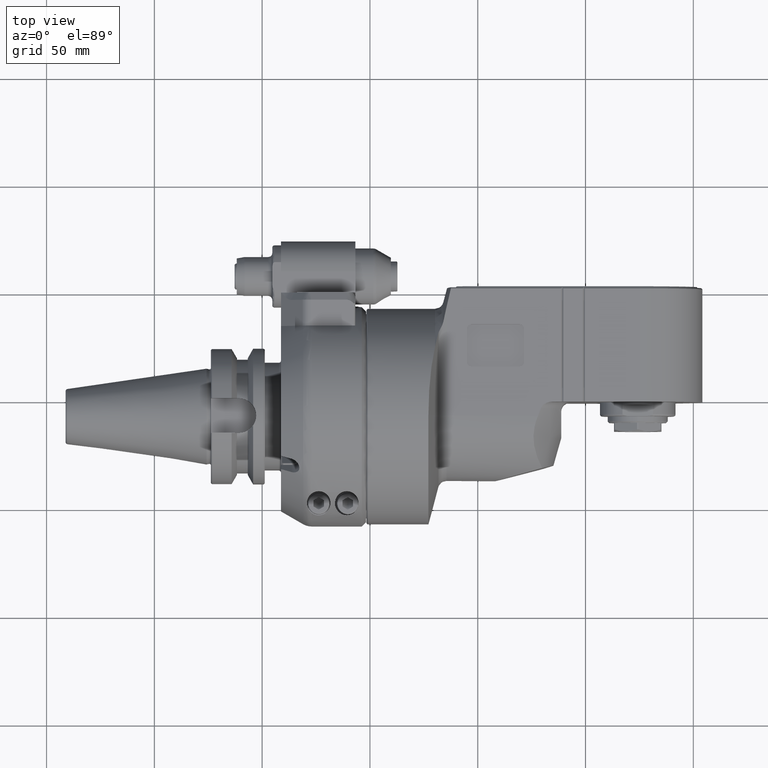
[diagram: clean part render]
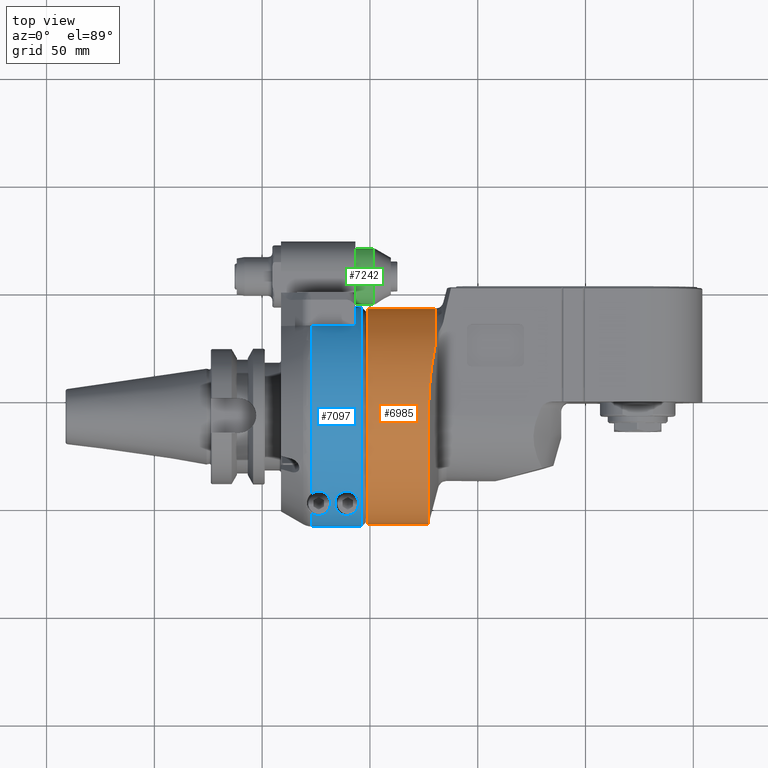
[diagram: same view with three faces highlighted in distinct colors, each labeled with its STEP entity id]
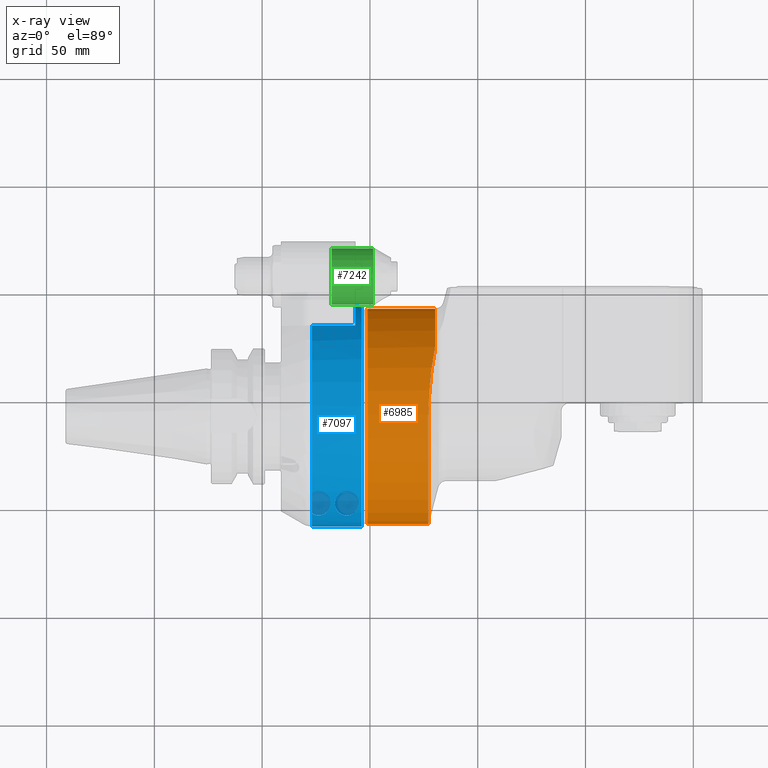
[diagram: x-ray of the same camera — body ghosted, the three highlighted faces saturated]
A machine part, top view with three faces highlighted in distinct colors.
The next image is the same camera in x-ray (body ghosted, the three faces saturated) — at least one of them is partly hidden behind the body in this view.
Their STEP definitions:

[orange] entity #6985 — the highlighted cylindrical surface (bore or boss wall) has radius 50 mm, axis along (1, 0, 0).
#662=FACE_OUTER_BOUND('',#1100,.T.);
#1100=EDGE_LOOP('',(#4723,#4724,#4725,#4726,#4727,#4728,#4729,#4730,#4731));
#1599=LINE('',#10331,#2099);
#2099=VECTOR('',#8275,50.);
#2599=ELLIPSE('',#7484,51.7638090205038,50.);
#2600=ELLIPSE('',#7486,51.7638090205038,50.);
#2605=CIRCLE('',#7483,50.);
#2606=CIRCLE('',#7485,50.);
#2607=CIRCLE('',#7487,50.);
#2608=CIRCLE('',#7488,50.);
#2609=CIRCLE('',#7489,50.);
#2943=VERTEX_POINT('',#10320);
#2944=VERTEX_POINT('',#10321);
#2945=VERTEX_POINT('',#10323);
#2946=VERTEX_POINT('',#10325);
#2947=VERTEX_POINT('',#10327);
#2948=VERTEX_POINT('',#10330);
#2949=VERTEX_POINT('',#10332);
#3645=EDGE_CURVE('',#2943,#2944,#2605,.T.);
#3646=EDGE_CURVE('',#2945,#2943,#2599,.T.);
#3647=EDGE_CURVE('',#2946,#2945,#2606,.T.);
#3648=EDGE_CURVE('',#2947,#2946,#2600,.T.);
#3649=EDGE_CURVE('',#2944,#2947,#2607,.T.);
#3650=EDGE_CURVE('',#2944,#2948,#1599,.T.);
#3651=EDGE_CURVE('',#2949,#2948,#2608,.T.);
#3652=EDGE_CURVE('',#2948,#2949,#2609,.T.);
#4723=ORIENTED_EDGE('',*,*,#3645,.F.);
#4724=ORIENTED_EDGE('',*,*,#3646,.F.);
#4725=ORIENTED_EDGE('',*,*,#3647,.F.);
#4726=ORIENTED_EDGE('',*,*,#3648,.F.);
#4727=ORIENTED_EDGE('',*,*,#3649,.F.);
#4728=ORIENTED_EDGE('',*,*,#3650,.T.);
#4729=ORIENTED_EDGE('',*,*,#3651,.F.);
#4730=ORIENTED_EDGE('',*,*,#3652,.F.);
#4731=ORIENTED_EDGE('',*,*,#3650,.F.);
#6879=CYLINDRICAL_SURFACE('',#7482,50.);
#6985=ADVANCED_FACE('',(#662),#6879,.T.);
#7482=AXIS2_PLACEMENT_3D('',#10319,#8263,#8264);
#7483=AXIS2_PLACEMENT_3D('',#10322,#8265,#8266);
#7484=AXIS2_PLACEMENT_3D('',#10324,#8267,#8268);
#7485=AXIS2_PLACEMENT_3D('',#10326,#8269,#8270);
#7486=AXIS2_PLACEMENT_3D('',#10328,#8271,#8272);
#7487=AXIS2_PLACEMENT_3D('',#10329,#8273,#8274);
#7488=AXIS2_PLACEMENT_3D('',#10333,#8276,#8277);
#7489=AXIS2_PLACEMENT_3D('',#10334,#8278,#8279);
#8263=DIRECTION('center_axis',(1.,0.,0.));
#8264=DIRECTION('ref_axis',(0.,-1.,0.));
#8265=DIRECTION('center_axis',(1.,0.,0.));
#8266=DIRECTION('ref_axis',(0.,0.632401211988616,-0.77464101819832));
#8267=DIRECTION('center_axis',(0.965925826289076,0.,-0.258819045102493));
#8268=DIRECTION('ref_axis',(-0.258819045102493,0.,-0.965925826289076));
#8269=DIRECTION('center_axis',(1.,0.,0.));
#8270=DIRECTION('ref_axis',(0.,-4.244886712573E-14,1.));
#8271=DIRECTION('center_axis',(0.965925826289076,0.,0.258819045102493));
#8272=DIRECTION('ref_axis',(0.258819045102493,0.,-0.965925826289076));
#8273=DIRECTION('center_axis',(1.,0.,0.));
#8274=DIRECTION('ref_axis',(0.,0.632401211988616,-0.77464101819832));
#8275=DIRECTION('',(-1.,0.,0.));
#8276=DIRECTION('center_axis',(-1.,0.,0.));
#8277=DIRECTION('ref_axis',(0.,-1.,0.));
#8278=DIRECTION('center_axis',(-1.,0.,0.));
#8279=DIRECTION('ref_axis',(0.,-1.,0.));
#10319=CARTESIAN_POINT('Origin',(21.96534601033,0.,0.));
#10320=CARTESIAN_POINT('',(35.93069202066,31.62006059943,-38.73205090992));
#10321=CARTESIAN_POINT('',(35.9306920206643,50.,6.12323399573677E-15));
#10322=CARTESIAN_POINT('Origin',(35.93069202066,0.,0.));
#10323=CARTESIAN_POINT('',(32.91145416162,0.,-50.));
#10324=CARTESIAN_POINT('Origin',(46.3089137831769,0.,0.));
#10325=CARTESIAN_POINT('',(32.91145416162,-2.122443356287E-12,50.));
#10326=CARTESIAN_POINT('Origin',(32.91145416162,0.,0.));
#10327=CARTESIAN_POINT('',(35.93069202066,31.62006059943,38.73205090992));
#10328=CARTESIAN_POINT('Origin',(46.3089137831686,0.,0.));
#10329=CARTESIAN_POINT('Origin',(35.93069202066,0.,0.));
#10330=CARTESIAN_POINT('',(4.7,50.,0.));
#10331=CARTESIAN_POINT('',(21.96534601033,50.,6.12323399573677E-15));
#10332=CARTESIAN_POINT('',(4.7000000000018,-6.12323399573662E-15,49.9999999999982));
#10333=CARTESIAN_POINT('Origin',(4.7,0.,0.));
#10334=CARTESIAN_POINT('Origin',(4.7,0.,0.));

[blue] entity #7097 — the highlighted cylindrical surface (partial cylindrical patch) has radius 51 mm, axis along (1, 0, 0).
#188=B_SPLINE_CURVE_WITH_KNOTS('',3,(#11060,#11061,#11062,#11063,#11064,
#11065,#11066,#11067,#11068,#11069,#11070,#11071,#11072,#11073,#11074,#11075,
#11076,#11077),.UNSPECIFIED.,.F.,.F.,(4,2,2,2,2,2,2,2,4),(1.24497996375057,
1.57211089183856,1.89924181992655,2.10031433028339,2.30138684064023,2.50245935099707,
2.70353186135391,3.0306627894419,3.35779371752989),.UNSPECIFIED.);
#191=B_SPLINE_CURVE_WITH_KNOTS('',3,(#11155,#11156,#11157,#11158,#11159,
#11160),.UNSPECIFIED.,.F.,.F.,(4,2,4),(-0.351622839102922,-0.201072510356838,
0.),.UNSPECIFIED.);
#192=B_SPLINE_CURVE_WITH_KNOTS('',3,(#11162,#11163,#11164,#11165,#11166,
#11167,#11168,#11169,#11170,#11171,#11172,#11173,#11174,#11175,#11176,#11177,
#11178,#11179,#11180,#11181,#11182,#11183,#11184,#11185,#11186,#11187),
 .UNSPECIFIED.,.F.,.F.,(4,2,2,2,2,2,2,2,2,2,2,2,4),(0.,0.201072510356838,
0.402145020713677,0.729275948801668,1.05640687688966,1.45814522272358,1.85988356855749,
2.08063520459886,2.19101102261954,2.30138684064023,2.41176265866091,2.52213847668159,
2.7154535046118),.UNSPECIFIED.);
#193=B_SPLINE_CURVE_WITH_KNOTS('',3,(#11191,#11192,#11193,#11194,#11195,
#11196,#11197,#11198,#11199,#11200,#11201,#11202,#11203,#11204,#11205,#11206,
#11207,#11208,#11209,#11210,#11211,#11212,#11213),.UNSPECIFIED.,.F.,.F.,
(4,2,2,2,2,3,2,2,2,2,4),(-1.24497996375057,-0.843241617916652,-0.441503272082734,
-0.220751636041367,-0.110375818020684,0.,0.110375818020684,0.220751636041367,
0.441503272082734,0.843241617916652,1.24497996375057),.UNSPECIFIED.);
#314=FACE_BOUND('',#1228,.T.);
#774=FACE_OUTER_BOUND('',#1227,.T.);
#1227=EDGE_LOOP('',(#5260,#5261,#5262,#5263,#5264,#5265,#5266,#5267,#5268,
#5269,#5270));
#1228=EDGE_LOOP('',(#5271,#5272));
#1725=LINE('',#11098,#2225);
#1727=LINE('',#11102,#2227);
#1733=LINE('',#11149,#2233);
#1734=LINE('',#11190,#2234);
#2225=VECTOR('',#8815,20.23205080757);
#2227=VECTOR('',#8817,20.23205080757);
#2233=VECTOR('',#8829,23.23206191748);
#2234=VECTOR('',#8838,23.23206611221);
#2700=CIRCLE('',#7697,51.);
#2701=CIRCLE('',#7698,51.);
#2702=CIRCLE('',#7699,51.);
#2703=CIRCLE('',#7700,51.);
#2704=CIRCLE('',#7701,51.);
#3104=VERTEX_POINT('',#11056);
#3106=VERTEX_POINT('',#11059);
#3113=VERTEX_POINT('',#11096);
#3114=VERTEX_POINT('',#11097);
#3115=VERTEX_POINT('',#11099);
#3116=VERTEX_POINT('',#11101);
#3126=VERTEX_POINT('',#11145);
#3127=VERTEX_POINT('',#11146);
#3128=VERTEX_POINT('',#11148);
#3129=VERTEX_POINT('',#11152);
#3130=VERTEX_POINT('',#11154);
#3131=VERTEX_POINT('',#11161);
#3132=VERTEX_POINT('',#11188);
#3900=EDGE_CURVE('',#3106,#3104,#188,.T.);
#3910=EDGE_CURVE('',#3113,#3114,#1725,.T.);
#3912=EDGE_CURVE('',#3116,#3115,#1727,.T.);
#3923=EDGE_CURVE('',#3126,#3127,#2700,.T.);
#3924=EDGE_CURVE('',#3126,#3128,#1733,.T.);
#3925=EDGE_CURVE('',#3116,#3128,#2701,.T.);
#3926=EDGE_CURVE('',#3113,#3115,#2702,.T.);
#3927=EDGE_CURVE('',#3129,#3114,#2703,.T.);
#3928=EDGE_CURVE('',#3129,#3130,#191,.T.);
#3929=EDGE_CURVE('',#3130,#3131,#192,.T.);
#3930=EDGE_CURVE('',#3132,#3131,#2704,.T.);
#3931=EDGE_CURVE('',#3132,#3127,#1734,.T.);
#3932=EDGE_CURVE('',#3104,#3106,#193,.T.);
#5260=ORIENTED_EDGE('',*,*,#3923,.F.);
#5261=ORIENTED_EDGE('',*,*,#3924,.T.);
#5262=ORIENTED_EDGE('',*,*,#3925,.F.);
#5263=ORIENTED_EDGE('',*,*,#3912,.T.);
#5264=ORIENTED_EDGE('',*,*,#3926,.F.);
#5265=ORIENTED_EDGE('',*,*,#3910,.T.);
#5266=ORIENTED_EDGE('',*,*,#3927,.F.);
#5267=ORIENTED_EDGE('',*,*,#3928,.T.);
#5268=ORIENTED_EDGE('',*,*,#3929,.T.);
#5269=ORIENTED_EDGE('',*,*,#3930,.F.);
#5270=ORIENTED_EDGE('',*,*,#3931,.T.);
#5271=ORIENTED_EDGE('',*,*,#3932,.T.);
#5272=ORIENTED_EDGE('',*,*,#3900,.T.);
#6909=CYLINDRICAL_SURFACE('',#7696,51.);
#7097=ADVANCED_FACE('',(#774,#314),#6909,.T.);
#7696=AXIS2_PLACEMENT_3D('',#11144,#8825,#8826);
#7697=AXIS2_PLACEMENT_3D('',#11147,#8827,#8828);
#7698=AXIS2_PLACEMENT_3D('',#11150,#8830,#8831);
#7699=AXIS2_PLACEMENT_3D('',#11151,#8832,#8833);
#7700=AXIS2_PLACEMENT_3D('',#11153,#8834,#8835);
#7701=AXIS2_PLACEMENT_3D('',#11189,#8836,#8837);
#8815=DIRECTION('',(-1.,0.,0.));
#8817=DIRECTION('',(1.,0.,0.));
#8825=DIRECTION('center_axis',(1.,0.,0.));
#8826=DIRECTION('ref_axis',(0.,1.,1.05873409698834E-10));
#8827=DIRECTION('center_axis',(1.,0.,0.));
#8828=DIRECTION('ref_axis',(0.,1.,0.));
#8829=DIRECTION('',(-1.,-3.620724304585E-11,1.230523343791E-9));
#8830=DIRECTION('center_axis',(-1.,0.,0.));
#8831=DIRECTION('ref_axis',(0.,0.818627450980411,-0.574324904998308));
#8832=DIRECTION('center_axis',(-1.,0.,0.));
#8833=DIRECTION('ref_axis',(0.,1.,0.));
#8834=DIRECTION('center_axis',(-1.,0.,0.));
#8835=DIRECTION('ref_axis',(0.,-0.711205879844998,0.702983781088798));
#8836=DIRECTION('center_axis',(-1.,0.,0.));
#8837=DIRECTION('ref_axis',(0.,-0.999567380468613,0.0294117647058804));
#8838=DIRECTION('',(1.,4.9878538981E-11,1.695142412605E-9));
#11056=CARTESIAN_POINT('',(-15.5,-40.7216512827,30.70418728464));
#11059=CARTESIAN_POINT('',(-26.5,-40.7216512827,30.7041872846388));
#11060=CARTESIAN_POINT('Ctrl Pts',(-26.5,-40.7216512827,30.7041872846388));
#11061=CARTESIAN_POINT('Ctrl Pts',(-26.5,-40.0651617871045,31.5748612439451));
#11062=CARTESIAN_POINT('Ctrl Pts',(-26.3775309176086,-39.319256727814,32.5000944024137));
#11063=CARTESIAN_POINT('Ctrl Pts',(-25.7586754272403,-37.8511872002494,
34.1986505928683));
#11064=CARTESIAN_POINT('Ctrl Pts',(-25.2627488095064,-37.1297545962508,
34.9727734951554));
#11065=CARTESIAN_POINT('Ctrl Pts',(-24.149351972259,-36.1782586100401,35.9500095679527));
#11066=CARTESIAN_POINT('Ctrl Pts',(-23.6039156243507,-35.8317714924385,
36.2931969488346));
#11067=CARTESIAN_POINT('Ctrl Pts',(-22.364786222781,-35.3524177755747,36.760284817991));
#11068=CARTESIAN_POINT('Ctrl Pts',(-21.6702417011895,-35.2216512827,36.8840789626077));
#11069=CARTESIAN_POINT('Ctrl Pts',(-20.3297582988105,-35.2216512827,36.8840789626077));
#11070=CARTESIAN_POINT('Ctrl Pts',(-19.635213777219,-35.3524177755747,36.760284817991));
#11071=CARTESIAN_POINT('Ctrl Pts',(-18.3960843756493,-35.8317714924385,
36.2931969488346));
#11072=CARTESIAN_POINT('Ctrl Pts',(-17.850648027741,-36.1782586100401,35.9500095679527));
#11073=CARTESIAN_POINT('Ctrl Pts',(-16.7372511904936,-37.1297545962508,
34.9727734951554));
#11074=CARTESIAN_POINT('Ctrl Pts',(-16.2413245727597,-37.8511872002494,
34.1986505928683));
#11075=CARTESIAN_POINT('Ctrl Pts',(-15.6224690823914,-39.319256727814,32.5000944024137));
#11076=CARTESIAN_POINT('Ctrl Pts',(-15.5,-40.0651617871045,31.5748612439451));
#11077=CARTESIAN_POINT('Ctrl Pts',(-15.5,-40.7216512827,30.7041872846388));
#11096=CARTESIAN_POINT('',(-17.,41.75,29.29057015492));
#11097=CARTESIAN_POINT('',(-37.23205080757,41.75,29.29057015492));
#11098=CARTESIAN_POINT('',(-17.,41.75,29.29057015492));
#11099=CARTESIAN_POINT('',(-17.,41.75,-29.29057015492));
#11101=CARTESIAN_POINT('',(-37.23205080757,41.75,-29.29057015492));
#11102=CARTESIAN_POINT('',(-37.23205080757,41.75,-29.29057015492));
#11144=CARTESIAN_POINT('Origin',(-43.,0.,0.));
#11145=CARTESIAN_POINT('',(-14.,-50.9779364039,-1.5));
#11146=CARTESIAN_POINT('',(-14.,-50.9779364039,1.5));
#11147=CARTESIAN_POINT('Origin',(-14.,0.,0.));
#11148=CARTESIAN_POINT('',(-37.2320508150874,-50.9779364043201,-1.49999998570621));
#11149=CARTESIAN_POINT('',(-14.,-50.9779364039,-1.5));
#11150=CARTESIAN_POINT('Origin',(-37.23205080757,0.,0.));
#11151=CARTESIAN_POINT('Origin',(-17.,0.,0.));
#11152=CARTESIAN_POINT('',(-37.23205080757,-36.27149987209,35.85217283553));
#11153=CARTESIAN_POINT('Origin',(-37.23205080757,0.,0.));
#11154=CARTESIAN_POINT('',(-34.,-35.2216512827,36.8840789626077));
#11155=CARTESIAN_POINT('Ctrl Pts',(-37.2320508075659,-36.2714998720946,
35.8521728355289));
#11156=CARTESIAN_POINT('Ctrl Pts',(-36.872037357752,-36.0100297211167,36.116701141561));
#11157=CARTESIAN_POINT('Ctrl Pts',(-36.44824163253,-35.7715494474255,36.3518780139684));
#11158=CARTESIAN_POINT('Ctrl Pts',(-35.364786222781,-35.3524177755747,36.760284817991));
#11159=CARTESIAN_POINT('Ctrl Pts',(-34.6702417011895,-35.2216512827,36.8840789626077));
#11160=CARTESIAN_POINT('Ctrl Pts',(-34.,-35.2216512827,36.8840789626077));
#11161=CARTESIAN_POINT('',(-37.23205080757,-45.1718026933,23.67505525733));
#11162=CARTESIAN_POINT('Ctrl Pts',(-34.,-35.2216512827,36.8840789626077));
#11163=CARTESIAN_POINT('Ctrl Pts',(-33.3297582988105,-35.2216512827,36.8840789626077));
#11164=CARTESIAN_POINT('Ctrl Pts',(-32.635213777219,-35.3524177755747,36.760284817991));
#11165=CARTESIAN_POINT('Ctrl Pts',(-31.3960843756493,-35.8317714924385,
36.2931969488346));
#11166=CARTESIAN_POINT('Ctrl Pts',(-30.850648027741,-36.1782586100401,35.9500095679527));
#11167=CARTESIAN_POINT('Ctrl Pts',(-29.7372511904936,-37.1297545962508,
34.9727734951554));
#11168=CARTESIAN_POINT('Ctrl Pts',(-29.2413245727597,-37.8511872002494,
34.1986505928683));
#11169=CARTESIAN_POINT('Ctrl Pts',(-28.6224690823914,-39.319256727814,32.5000944024137));
#11170=CARTESIAN_POINT('Ctrl Pts',(-28.5,-40.0651617871045,31.5748612439451));
#11171=CARTESIAN_POINT('Ctrl Pts',(-28.5,-41.5278636624324,29.6349422633357));
#11172=CARTESIAN_POINT('Ctrl Pts',(-28.6828935944427,-42.355228362554,28.4428786872814));
#11173=CARTESIAN_POINT('Ctrl Pts',(-29.4026147018995,-43.8528254301532,
26.0747465478085));
#11174=CARTESIAN_POINT('Ctrl Pts',(-29.9314939989374,-44.5246315328702,
24.8972647332227));
#11175=CARTESIAN_POINT('Ctrl Pts',(-31.001270294294,-45.3572445916551,23.326334884601));
#11176=CARTESIAN_POINT('Ctrl Pts',(-31.480842706606,-45.6482368635351,22.7481982089167));
#11177=CARTESIAN_POINT('Ctrl Pts',(-32.3308258147761,-45.9710043968678,
22.0845481334827));
#11178=CARTESIAN_POINT('Ctrl Pts',(-32.6354867073276,-46.0599916909384,
21.8974583438779));
#11179=CARTESIAN_POINT('Ctrl Pts',(-33.286197560497,-46.1851905126261,21.6321449190877));
#11180=CARTESIAN_POINT('Ctrl Pts',(-33.6320806065977,-46.2216512827,21.5536296873747));
#11181=CARTESIAN_POINT('Ctrl Pts',(-34.3679193934023,-46.2216512827,21.5536296873747));
#11182=CARTESIAN_POINT('Ctrl Pts',(-34.713802439503,-46.1851905126261,21.6321449190877));
#11183=CARTESIAN_POINT('Ctrl Pts',(-35.3645132926724,-46.0599916909384,
21.8974583438779));
#11184=CARTESIAN_POINT('Ctrl Pts',(-35.6691741852239,-45.9710043968678,
22.0845481334827));
#11185=CARTESIAN_POINT('Ctrl Pts',(-36.4487292658961,-45.6749807840842,
22.6932093917128));
#11186=CARTESIAN_POINT('Ctrl Pts',(-36.8782785168307,-45.4287400225037,
23.1848210334514));
#11187=CARTESIAN_POINT('Ctrl Pts',(-37.2320508075737,-45.1718026932997,
23.6750552573295));
#11188=CARTESIAN_POINT('',(-37.2320508231036,-50.9779364044793,1.499999980309));
#11189=CARTESIAN_POINT('Origin',(-37.23205080757,0.,0.));
#11190=CARTESIAN_POINT('',(-37.23206611221,-50.97793640506,1.499999960618));
#11191=CARTESIAN_POINT('Ctrl Pts',(-15.5,-40.7216512827,30.7041872846388));
#11192=CARTESIAN_POINT('Ctrl Pts',(-15.5,-41.5278636624324,29.6349422633357));
#11193=CARTESIAN_POINT('Ctrl Pts',(-15.6828935944427,-42.355228362554,28.4428786872814));
#11194=CARTESIAN_POINT('Ctrl Pts',(-16.4026147018995,-43.8528254301532,
26.0747465478085));
#11195=CARTESIAN_POINT('Ctrl Pts',(-16.9314939989374,-44.5246315328702,
24.8972647332227));
#11196=CARTESIAN_POINT('Ctrl Pts',(-18.001270294294,-45.3572445916551,23.326334884601));
#11197=CARTESIAN_POINT('Ctrl Pts',(-18.480842706606,-45.6482368635351,22.7481982089167));
#11198=CARTESIAN_POINT('Ctrl Pts',(-19.3308258147761,-45.9710043968678,
22.0845481334827));
#11199=CARTESIAN_POINT('Ctrl Pts',(-19.6354867073276,-46.0599916909384,
21.8974583438779));
#11200=CARTESIAN_POINT('Ctrl Pts',(-20.286197560497,-46.1851905126261,21.6321449190877));
#11201=CARTESIAN_POINT('Ctrl Pts',(-20.6320806065977,-46.2216512827,21.5536296873747));
#11202=CARTESIAN_POINT('Ctrl Pts',(-21.,-46.2216512827,21.5536296873747));
#11203=CARTESIAN_POINT('Ctrl Pts',(-21.3679193934023,-46.2216512827,21.5536296873747));
#11204=CARTESIAN_POINT('Ctrl Pts',(-21.713802439503,-46.1851905126261,21.6321449190877));
#11205=CARTESIAN_POINT('Ctrl Pts',(-22.3645132926724,-46.0599916909384,
21.8974583438779));
#11206=CARTESIAN_POINT('Ctrl Pts',(-22.6691741852239,-45.9710043968678,
22.0845481334827));
#11207=CARTESIAN_POINT('Ctrl Pts',(-23.519157293394,-45.6482368635351,22.7481982089167));
#11208=CARTESIAN_POINT('Ctrl Pts',(-23.998729705706,-45.3572445916551,23.326334884601));
#11209=CARTESIAN_POINT('Ctrl Pts',(-25.0685060010626,-44.5246315328702,
24.8972647332227));
#11210=CARTESIAN_POINT('Ctrl Pts',(-25.5973852981005,-43.8528254301532,
26.0747465478085));
#11211=CARTESIAN_POINT('Ctrl Pts',(-26.3171064055573,-42.355228362554,28.4428786872814));
#11212=CARTESIAN_POINT('Ctrl Pts',(-26.5,-41.5278636624324,29.6349422633357));
#11213=CARTESIAN_POINT('Ctrl Pts',(-26.5,-40.7216512827,30.7041872846388));

[green] entity #7242 — the highlighted cylindrical surface (bore or boss wall) has radius 13 mm, axis along (1, 0, 0).
#919=FACE_OUTER_BOUND('',#1394,.T.);
#1394=EDGE_LOOP('',(#6006,#6007,#6008,#6009,#6010));
#1927=LINE('',#12320,#2427);
#2427=VECTOR('',#9521,13.);
#2802=CIRCLE('',#7943,13.);
#2803=CIRCLE('',#7945,13.);
#2804=CIRCLE('',#7946,13.);
#3361=VERTEX_POINT('',#12313);
#3362=VERTEX_POINT('',#12316);
#3363=VERTEX_POINT('',#12317);
#4287=EDGE_CURVE('',#3361,#3361,#2802,.T.);
#4288=EDGE_CURVE('',#3362,#3363,#2803,.T.);
#4289=EDGE_CURVE('',#3363,#3362,#2804,.T.);
#4290=EDGE_CURVE('',#3363,#3361,#1927,.T.);
#6006=ORIENTED_EDGE('',*,*,#4288,.F.);
#6007=ORIENTED_EDGE('',*,*,#4289,.F.);
#6008=ORIENTED_EDGE('',*,*,#4290,.T.);
#6009=ORIENTED_EDGE('',*,*,#4287,.F.);
#6010=ORIENTED_EDGE('',*,*,#4290,.F.);
#6947=CYLINDRICAL_SURFACE('',#7944,13.);
#7242=ADVANCED_FACE('',(#919),#6947,.T.);
#7943=AXIS2_PLACEMENT_3D('',#12314,#9513,#9514);
#7944=AXIS2_PLACEMENT_3D('',#12315,#9515,#9516);
#7945=AXIS2_PLACEMENT_3D('',#12318,#9517,#9518);
#7946=AXIS2_PLACEMENT_3D('',#12319,#9519,#9520);
#9513=DIRECTION('center_axis',(-1.,0.,0.));
#9514=DIRECTION('ref_axis',(0.,1.,0.));
#9515=DIRECTION('center_axis',(1.,0.,0.));
#9516=DIRECTION('ref_axis',(0.,1.,0.));
#9517=DIRECTION('center_axis',(1.,0.,0.));
#9518=DIRECTION('ref_axis',(0.,-1.,0.));
#9519=DIRECTION('center_axis',(1.,0.,0.));
#9520=DIRECTION('ref_axis',(0.,-1.,0.));
#9521=DIRECTION('',(-1.,0.,0.));
#12313=CARTESIAN_POINT('',(-28.,52.,-1.59204083889156E-15));
#12314=CARTESIAN_POINT('Origin',(-28.,65.,0.));
#12315=CARTESIAN_POINT('Origin',(-17.,65.,0.));
#12316=CARTESIAN_POINT('',(-8.803847577293,78.,0.));
#12317=CARTESIAN_POINT('',(-8.803847577293,52.,-1.59204083889156E-15));
#12318=CARTESIAN_POINT('Origin',(-8.803847577293,65.,0.));
#12319=CARTESIAN_POINT('Origin',(-8.803847577293,65.,0.));
#12320=CARTESIAN_POINT('',(-17.,52.,-1.59204083889156E-15));